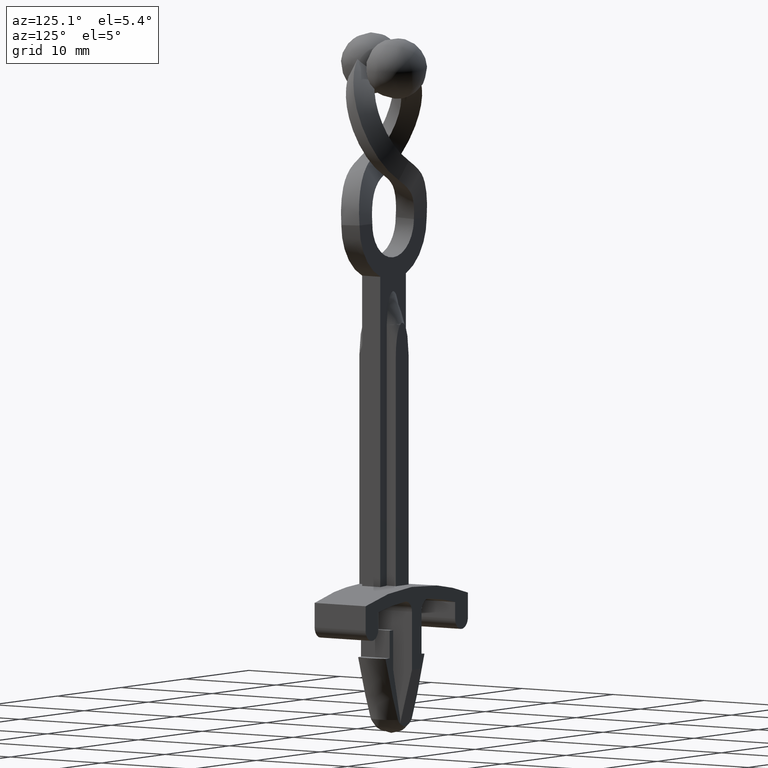
[diagram: clean part render]
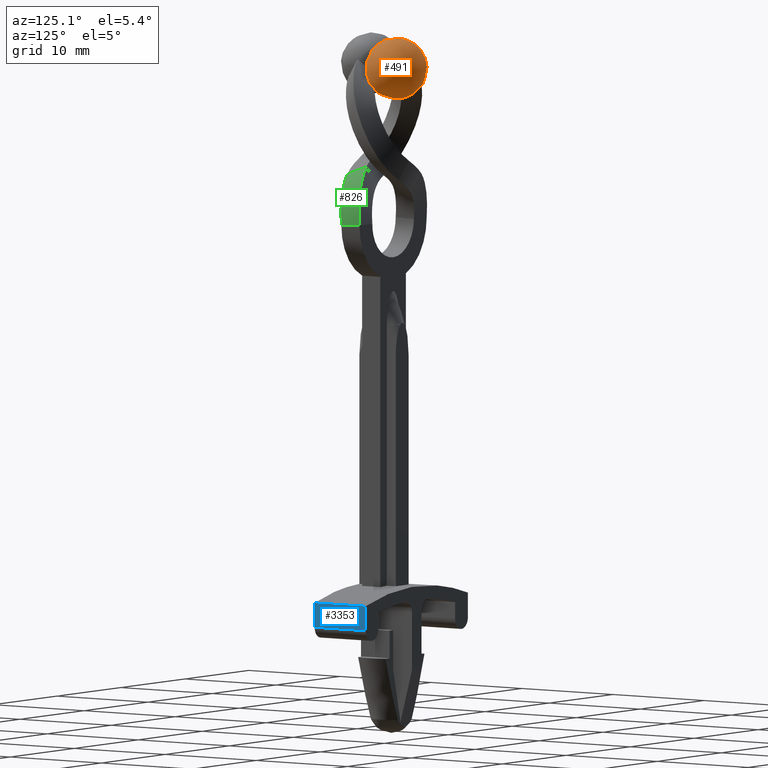
[diagram: same view with three faces highlighted in distinct colors, each labeled with its STEP entity id]
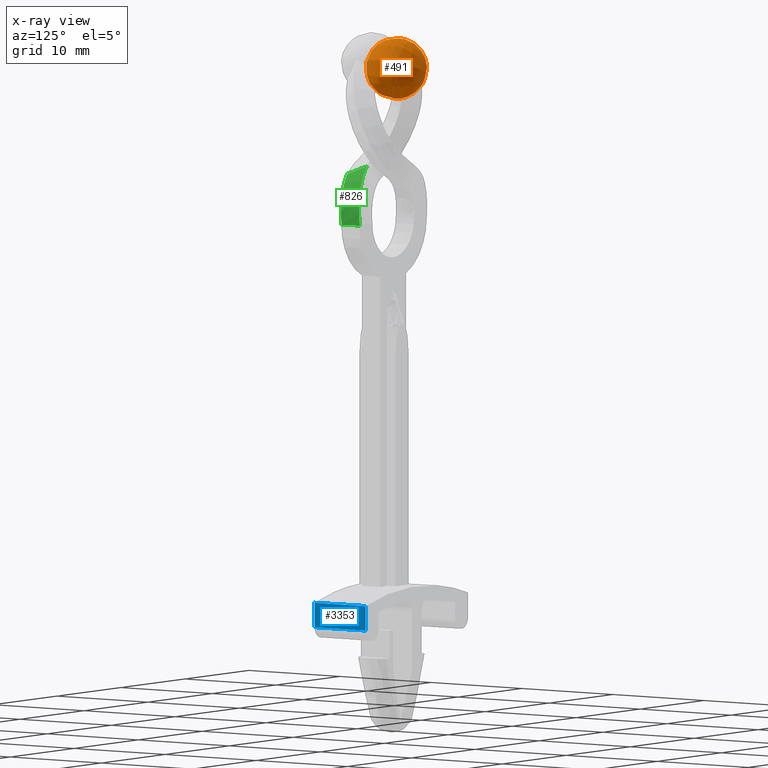
[diagram: x-ray of the same camera — body ghosted, the three highlighted faces saturated]
A machine part, auxiliary view with three faces highlighted in distinct colors.
The next image is the same camera in x-ray (body ghosted, the three faces saturated) — at least one of them is partly hidden behind the body in this view.
Their STEP definitions:

[orange] entity #491 — the highlighted face is a freeform B-spline surface patch.
#369=CARTESIAN_POINT('',(-0.525203079926741,1.343696333352576,12.647938655247941));
#370=CARTESIAN_POINT('',(-0.442358042478779,1.354385251187082,12.509876927833954));
#371=CARTESIAN_POINT('',(-0.318053823121531,1.612739717631442,12.191763779673504));
#372=CARTESIAN_POINT('',(-0.437633498739492,2.130976700360019,12.146672392496209));
#373=CARTESIAN_POINT('',(-0.672424090726442,2.356407136352908,12.420853360043674));
#374=CARTESIAN_POINT('',(-0.755748168907722,2.353985374639821,12.555899483097784));
#375=CARTESIAN_POINT('',(-0.462103023219552,1.195724413060701,12.674346168259346));
#376=CARTESIAN_POINT('',(-0.314997623849283,1.146371215039256,12.486781817545578));
#377=CARTESIAN_POINT('',(0.033949721224506,1.431755355773936,11.875567230398950));
#378=CARTESIAN_POINT('',(-0.187729440916606,2.392473299923918,11.791975927131169));
#379=CARTESIAN_POINT('',(-0.646701270686410,2.592624970327198,12.358103512598202));
#380=CARTESIAN_POINT('',(-0.763663449539884,2.518757572067718,12.553970553505305));
#381=CARTESIAN_POINT('',(-0.412818816506893,0.876901281014548,12.961094304551525));
#382=CARTESIAN_POINT('',(-0.086165850456160,0.511073610822624,12.840930875612802));
#383=CARTESIAN_POINT('',(8.379274447284347,-4.095686250981126,8.597090758833359));
#384=CARTESIAN_POINT('',(5.039375876326441,10.378838362737870,7.337673898755001));
#385=CARTESIAN_POINT('',(-0.729243666115336,3.318120491570052,12.593787341360727));
#386=CARTESIAN_POINT('',(-0.869119826467684,2.876959796444440,12.783808725351964));
#387=CARTESIAN_POINT('',(-0.602366263971613,0.876901281014548,13.463762856151465));
#388=CARTESIAN_POINT('',(-0.436384586173212,0.511073610822624,13.769690122865763));
#389=CARTESIAN_POINT('',(3.119215988349295,-4.095686250981126,22.546452790606679));
#390=CARTESIAN_POINT('',(-0.220682582608611,10.378838362737870,21.287035930528319));
#391=CARTESIAN_POINT('',(-1.082532850158408,3.318120491570052,13.530689234866367));
#392=CARTESIAN_POINT('',(-1.062115590003478,2.876959796444440,13.295622005979334));
#393=CARTESIAN_POINT('',(-0.826690810498487,1.192875385258646,13.644941622704481));
#394=CARTESIAN_POINT('',(-0.839252525160848,1.141944949409370,13.883770110799508));
#395=CARTESIAN_POINT('',(-0.979887989858084,1.426775124684639,14.581190930759641));
#396=CARTESIAN_POINT('',(-1.204376671185083,2.399669023805957,14.496540207345944));
#397=CARTESIAN_POINT('',(-1.175509311773393,2.597658472460116,13.760587434415378));
#398=CARTESIAN_POINT('',(-1.134028528061643,2.521939198358653,13.535714139421316));
#399=CARTESIAN_POINT('',(-0.890721939812416,1.337303843490233,13.625642844788016));
#400=CARTESIAN_POINT('',(-0.919296357256698,1.346204880230067,13.787063181605509));
#401=CARTESIAN_POINT('',(-1.037419697158879,1.607153589509379,14.118532265818452));
#402=CARTESIAN_POINT('',(-1.160150699261966,2.139047859070392,14.072252568989637));
#403=CARTESIAN_POINT('',(-1.154891343508131,2.365684330659934,13.700542458132752));
#404=CARTESIAN_POINT('',(-1.127748896558200,2.361084473736505,13.541435793415419));
#412=(BOUNDED_SURFACE()B_SPLINE_SURFACE(2,2,((#369,#375,#381,#387,#393,#399),(#370,#376,#382,#388,#394,#400),(#371,#377,#383,#389,#395,#401),(#372,#378,#384,#390,#396,#402),(#373,#379,#385,#391,#397,#403),(#374,#380,#386,#392,#398,#404)),.UNSPECIFIED.,.F.,.F.,.U.)B_SPLINE_SURFACE_WITH_KNOTS((3,1,1,1,3),(3,1,1,1,3),(0.0,2.896780624830471,6.086643513679817,9.276506402529165,12.116614500995690),(0.0,2.917190633959819,6.107053522809168,9.296916411658517,12.132242494071059),.UNSPECIFIED.)GEOMETRIC_REPRESENTATION_ITEM()RATIONAL_B_SPLINE_SURFACE(((54.680935872322280,41.816978460238900,27.750616161233769,27.750616161233769,41.628420027402392,53.963777577064057),(41.949671683122190,29.085714271038810,15.019351972033681,15.019351972033681,28.897155838202298,41.232513387863982),(27.930319711088501,15.066362299005130,1.0,1.0,14.877803866168611,27.213161415830289),(27.930319711088501,15.066362299005130,1.0,1.0,14.877803866168611,27.213161415830289),(41.819137983809107,28.955180571725741,14.888818272720609,14.888818272720609,28.766622138889218,41.101979688550898),(54.185106876193892,41.321149464110512,27.254787165105380,27.254787165105380,41.132591031274004,53.467948580935669)))REPRESENTATION_ITEM('')SURFACE());
#413=CARTESIAN_POINT('',(-1.086899371842424,2.141053710324115,14.572527605981840));
#414=VERTEX_POINT('',#413);
#415=CARTESIAN_POINT('',(-0.824357974892849,3.292493974763335,12.940894711433980));
#416=VERTEX_POINT('',#415);
#417=CARTESIAN_POINT('',(-1.086899371842424,2.141053710324115,14.572527605981840));
#418=CARTESIAN_POINT('',(-1.128868890140672,2.206630633446335,14.416138136690011));
#419=CARTESIAN_POINT('',(-1.154386963714786,2.280023216234333,14.262000190461229));
#420=CARTESIAN_POINT('',(-1.168968401908317,2.403239667463355,14.035002040794820));
#421=CARTESIAN_POINT('',(-1.169846898277576,2.446511518596353,13.960039983841620));
#422=CARTESIAN_POINT('',(-1.165000366902754,2.515020022954722,13.848787659570389));
#423=CARTESIAN_POINT('',(-1.162348217340399,2.538443704237354,13.811934022496610));
#424=CARTESIAN_POINT('',(-1.155054424934876,2.585929233409436,13.739562684348069));
#425=CARTESIAN_POINT('',(-1.150409354202682,2.610062018991277,13.703927870847210));
#426=CARTESIAN_POINT('',(-1.122282633749848,2.732686812351268,13.528493753921159));
#427=CARTESIAN_POINT('',(-1.084277678843706,2.837049239171132,13.396859358499229));
#428=CARTESIAN_POINT('',(-1.017001344101504,2.975647800990577,13.243549325895181));
#429=CARTESIAN_POINT('',(-1.002506444101977,3.003845043823161,13.213382787173661));
#430=CARTESIAN_POINT('',(-0.971727773852038,3.060583246814606,13.154691489078781));
#431=CARTESIAN_POINT('',(-0.955437313452087,3.089147038317711,13.126135935464321));
#432=CARTESIAN_POINT('',(-0.903879479745280,3.175390838799064,13.042795177584351));
#433=CARTESIAN_POINT('',(-0.865934028929947,3.233625181203471,12.990332456913260));
#434=CARTESIAN_POINT('',(-0.824357974892850,3.292493974763335,12.940894711433980));
#435=B_SPLINE_CURVE_WITH_KNOTS('',3,(#417,#418,#419,#420,#421,#422,#423,#424,#425,#426,#427,#428,#429,#430,#431,#432,#433,#434),.UNSPECIFIED.,.F.,.U.,(4,2,2,2,2,2,2,2,4),(0.0,0.250000000000001,0.375000000000002,0.437500000000003,0.500000000000003,0.750000000000001,0.812500000000000,0.874999999999999,1.0),.UNSPECIFIED.);
#436=EDGE_CURVE('',#414,#416,#435,.T.);
#437=ORIENTED_EDGE('',*,*,#436,.F.);
#438=CARTESIAN_POINT('',(-0.336110365323622,0.567834350926394,13.532260087279081));
#439=VERTEX_POINT('',#438);
#440=CARTESIAN_POINT('',(-0.336110365323622,0.567834350926394,13.532260087279081));
#441=CARTESIAN_POINT('',(-0.398589567649774,0.624116345356223,13.557877177786411));
#442=CARTESIAN_POINT('',(-0.457573975062271,0.682287663003054,13.586142322051410));
#443=CARTESIAN_POINT('',(-0.568647410310755,0.802286006812635,13.648037283244451));
#444=CARTESIAN_POINT('',(-0.620811194200533,0.864211448339429,13.681722440710240));
#445=CARTESIAN_POINT('',(-0.766285952249357,1.054930082150758,13.790699846803619));
#446=CARTESIAN_POINT('',(-0.846468765770793,1.185580431583592,13.872109802434970));
#447=CARTESIAN_POINT('',(-0.942514123257248,1.386846216252342,14.006489550113921));
#448=CARTESIAN_POINT('',(-0.970456936710972,1.454828294433420,14.053337536390810));
#449=CARTESIAN_POINT('',(-1.017946200195297,1.592723789822313,14.151131747161950));
#450=CARTESIAN_POINT('',(-1.037158174495114,1.661718760209371,14.201430226524710));
#451=CARTESIAN_POINT('',(-1.081308418543315,1.867788371226458,14.355259262508371));
#452=CARTESIAN_POINT('',(-1.093089277523023,2.004488032194229,14.462084544997641));
#453=CARTESIAN_POINT('',(-1.086899371842424,2.141053710324115,14.572527605981840));
#454=B_SPLINE_CURVE_WITH_KNOTS('',3,(#440,#441,#442,#443,#444,#445,#446,#447,#448,#449,#450,#451,#452,#453),.UNSPECIFIED.,.F.,.U.,(4,2,2,2,2,2,4),(0.0,0.125000000000001,0.250000000000001,0.500000000000001,0.625000000000001,0.750000000000001,1.0),.UNSPECIFIED.);
#455=EDGE_CURVE('',#439,#414,#454,.T.);
#456=ORIENTED_EDGE('',*,*,#455,.F.);
#457=CARTESIAN_POINT('',(-0.032097557430013,1.725973218598905,11.905456973518200));
#458=VERTEX_POINT('',#457);
#459=CARTESIAN_POINT('',(-0.032097557430013,1.725973218598905,11.905456973518200));
#460=CARTESIAN_POINT('',(-0.108406045346608,1.607618371397810,12.007010340122109));
#461=CARTESIAN_POINT('',(-0.172534902811599,1.492767326803297,12.119339154865990));
#462=CARTESIAN_POINT('',(-0.277080948823909,1.271446272414717,12.365392991623001));
#463=CARTESIAN_POINT('',(-0.316266247905243,1.167561397088007,12.496193396279221));
#464=CARTESIAN_POINT('',(-0.355850450026636,1.021174888549574,12.703432727151350));
#465=CARTESIAN_POINT('',(-0.365815845047893,0.973956154780938,12.774361280497770));
#466=CARTESIAN_POINT('',(-0.379003757047613,0.882597430747541,12.919923015632479));
#467=CARTESIAN_POINT('',(-0.382203539392053,0.838302895350297,12.994861486865430));
#468=CARTESIAN_POINT('',(-0.381031560718085,0.712109759725524,13.221375850157610));
#469=CARTESIAN_POINT('',(-0.366197790526676,0.636232101644403,13.375502267793079));
#470=CARTESIAN_POINT('',(-0.336110365323622,0.567834350926394,13.532260087279081));
#471=B_SPLINE_CURVE_WITH_KNOTS('',3,(#459,#460,#461,#462,#463,#464,#465,#466,#467,#468,#469,#470),.UNSPECIFIED.,.F.,.U.,(4,2,2,2,2,4),(0.0,0.249999999999999,0.499999999999998,0.624999999999998,0.749999999999999,1.0),.UNSPECIFIED.);
#472=EDGE_CURVE('',#458,#439,#471,.T.);
#473=ORIENTED_EDGE('',*,*,#472,.F.);
#474=CARTESIAN_POINT('',(-0.824357974892849,3.292493974763335,12.940894711433980));
#475=CARTESIAN_POINT('',(-0.821632494310975,3.155549591331354,12.830054148234630));
#476=CARTESIAN_POINT('',(-0.801461699658065,3.019740992194336,12.723968785239940));
#477=CARTESIAN_POINT('',(-0.729197759465720,2.749107330197067,12.521972224946690));
#478=CARTESIAN_POINT('',(-0.677091867214526,2.614289576675213,12.426055785054061));
#479=CARTESIAN_POINT('',(-0.539831458248977,2.344721399132104,12.246035324406300));
#480=CARTESIAN_POINT('',(-0.456946656584237,2.214479299700575,12.164982277574079));
#481=CARTESIAN_POINT('',(-0.312785266285157,2.025972050544432,12.057161538286190));
#482=CARTESIAN_POINT('',(-0.261376024552780,1.964249965860320,12.023497967218260));
#483=CARTESIAN_POINT('',(-0.151696734641920,1.843085295905824,11.960821772500770));
#484=CARTESIAN_POINT('',(-0.093305312026672,1.783553957328404,11.931780534942691));
#485=CARTESIAN_POINT('',(-0.032097557430013,1.725973218598905,11.905456973518200));
#486=B_SPLINE_CURVE_WITH_KNOTS('',3,(#474,#475,#476,#477,#478,#479,#480,#481,#482,#483,#484,#485),.UNSPECIFIED.,.F.,.U.,(4,2,2,2,2,4),(0.0,0.250000000000000,0.500000000000001,0.750000000000001,0.875000000000000,1.0),.UNSPECIFIED.);
#487=EDGE_CURVE('',#416,#458,#486,.T.);
#488=ORIENTED_EDGE('',*,*,#487,.F.);
#489=EDGE_LOOP('',(#437,#456,#473,#488));
#490=FACE_OUTER_BOUND('',#489,.T.);
#491=ADVANCED_FACE('',(#490),#412,.T.);

[blue] entity #3353 — the highlighted face is a freeform B-spline surface patch.
#3318=CARTESIAN_POINT('',(8.000073000000000,-2.279719969138977,-33.890109964964303));
#3319=CARTESIAN_POINT('',(8.000073000000000,-2.279719969138977,-36.309890880825613));
#3320=CARTESIAN_POINT('',(8.000073000000000,3.879719718799405,-33.890109964964303));
#3321=CARTESIAN_POINT('',(8.000073000000000,3.879719718799405,-36.309890880825613));
#3322=B_SPLINE_SURFACE_WITH_KNOTS('',1,1,((#3318,#3320),(#3319,#3321)),.UNSPECIFIED.,.F.,.F.,.U.,(2,2),(2,2),(0.0,2.419780915861303),(0.0,6.159439687938381),.UNSPECIFIED.);
#3323=CARTESIAN_POINT('',(8.000073000000000,-2.0,-36.200000000000003));
#3324=VERTEX_POINT('',#3323);
#3325=CARTESIAN_POINT('',(8.000073000000000,-2.0,-34.0));
#3326=VERTEX_POINT('',#3325);
#3327=CARTESIAN_POINT('',(8.000073000000000,-2.0,-36.200000000000003));
#3328=CARTESIAN_POINT('',(8.000073000000000,-2.0,-34.0));
#3329=QUASI_UNIFORM_CURVE('',1,(#3327,#3328),.UNSPECIFIED.,.F.,.U.);
#3330=EDGE_CURVE('',#3324,#3326,#3329,.T.);
#3331=ORIENTED_EDGE('',*,*,#3330,.F.);
#3332=CARTESIAN_POINT('',(8.000073000000000,3.599999999999935,-36.200000000000003));
#3333=VERTEX_POINT('',#3332);
#3334=CARTESIAN_POINT('',(8.000073000000000,3.599999999999935,-36.200000000000003));
#3335=CARTESIAN_POINT('',(8.000073000000000,-2.0,-36.200000000000003));
#3336=QUASI_UNIFORM_CURVE('',1,(#3334,#3335),.UNSPECIFIED.,.F.,.U.);
#3337=EDGE_CURVE('',#3333,#3324,#3336,.T.);
#3338=ORIENTED_EDGE('',*,*,#3337,.F.);
#3339=CARTESIAN_POINT('',(8.000073000000000,3.599999999999935,-34.0));
#3340=VERTEX_POINT('',#3339);
#3341=CARTESIAN_POINT('',(8.000073000000000,3.599999999999935,-36.200000000000003));
#3342=CARTESIAN_POINT('',(8.000073000000000,3.599999999999935,-34.0));
#3343=QUASI_UNIFORM_CURVE('',1,(#3341,#3342),.UNSPECIFIED.,.F.,.U.);
#3344=EDGE_CURVE('',#3333,#3340,#3343,.T.);
#3345=ORIENTED_EDGE('',*,*,#3344,.T.);
#3346=CARTESIAN_POINT('',(8.000073000000000,3.599999999999935,-34.0));
#3347=CARTESIAN_POINT('',(8.000073000000000,-2.0,-34.0));
#3348=QUASI_UNIFORM_CURVE('',1,(#3346,#3347),.UNSPECIFIED.,.F.,.U.);
#3349=EDGE_CURVE('',#3340,#3326,#3348,.T.);
#3350=ORIENTED_EDGE('',*,*,#3349,.T.);
#3351=EDGE_LOOP('',(#3331,#3338,#3345,#3350));
#3352=FACE_OUTER_BOUND('',#3351,.T.);
#3353=ADVANCED_FACE('',(#3352),#3322,.T.);

[green] entity #826 — the highlighted face is a freeform B-spline surface patch.
#662=CARTESIAN_POINT('',(2.149967534031185,-0.403884660268962,5.029066196815569));
#663=VERTEX_POINT('',#662);
#674=CARTESIAN_POINT('',(5.250000988660920,1.000071693797540,0.026189324703322));
#675=VERTEX_POINT('',#674);
#676=CARTESIAN_POINT('',(5.250000988660920,1.000071693797540,0.026189324703322));
#677=CARTESIAN_POINT('',(5.249824866936224,0.998103426073690,0.048157506786921));
#678=CARTESIAN_POINT('',(5.249639643696368,0.996039333149134,0.071193320758400));
#679=CARTESIAN_POINT('',(5.248474154146174,0.983114021439017,0.215422988953304));
#680=CARTESIAN_POINT('',(5.242746046332049,0.968514329377998,0.362515386851879));
#681=CARTESIAN_POINT('',(5.222623541213755,0.939353166395984,0.625181957585172));
#682=CARTESIAN_POINT('',(5.208116835555253,0.923462509131917,0.755615182447528));
#683=CARTESIAN_POINT('',(5.151548368179588,0.872005131815771,1.143584689042877));
#684=CARTESIAN_POINT('',(5.096433198636581,0.832650410229003,1.397802473242931));
#685=CARTESIAN_POINT('',(4.881163260365895,0.700628438148188,2.141679575574468));
#686=CARTESIAN_POINT('',(4.670841717992901,0.593928915406902,2.612548552251683));
#687=CARTESIAN_POINT('',(4.132508203498084,0.350888966805131,3.472559797386008));
#688=CARTESIAN_POINT('',(3.804640012247436,0.214613453298515,3.861472369636403));
#689=CARTESIAN_POINT('',(3.240773629670294,-0.005119102759858,4.362299487607548));
#690=CARTESIAN_POINT('',(3.040834326520470,-0.080913121247464,4.515542336512299));
#691=CARTESIAN_POINT('',(2.724894188477230,-0.197631177704365,4.722671557645476));
#692=CARTESIAN_POINT('',(2.616906898454194,-0.237042547181866,4.787927828070163));
#693=CARTESIAN_POINT('',(2.395875208514901,-0.316754604227500,4.910515591270482));
#694=CARTESIAN_POINT('',(2.269924497509940,-0.361603585704386,4.973785843812964));
#695=CARTESIAN_POINT('',(2.161404927675056,-0.399853353760691,5.023795638876504));
#696=CARTESIAN_POINT('',(2.155608552687154,-0.401896388954094,5.026466747003496));
#697=CARTESIAN_POINT('',(2.149967534031185,-0.403884660268962,5.029066196815569));
#698=B_SPLINE_CURVE_WITH_KNOTS('',3,(#676,#677,#678,#679,#680,#681,#682,#683,#684,#685,#686,#687,#688,#689,#690,#691,#692,#693,#694,#695,#696,#697),.UNSPECIFIED.,.F.,.U.,(4,2,2,2,2,2,2,2,2,2,4),(-0.013843101330432,0.0,0.062500000000000,0.125000000000000,0.250000000000000,0.500000000000000,0.750000000000000,0.875000000000000,0.937500000000000,1.0,1.003647700500690),.UNSPECIFIED.);
#699=EDGE_CURVE('',#675,#663,#698,.T.);
#717=CARTESIAN_POINT('',(5.251088822374879,-0.997921171654867,-0.176924137044495));
#718=CARTESIAN_POINT('',(5.250848755923880,-0.327233895192352,-0.116873559704173));
#719=CARTESIAN_POINT('',(5.250608689472911,0.343453381270163,-0.056822982363851));
#720=CARTESIAN_POINT('',(5.250368623021911,1.014140657732683,0.003227594976472));
#721=CARTESIAN_POINT('',(5.250845013889910,-1.000648816862162,-0.146573092863280));
#722=CARTESIAN_POINT('',(5.250607202610700,-0.329936489229668,-0.086801207603864));
#723=CARTESIAN_POINT('',(5.250369391331529,0.340775838402824,-0.027029322344448));
#724=CARTESIAN_POINT('',(5.250131580052321,1.011488166035321,0.032742562914969));
#725=CARTESIAN_POINT('',(5.250599184242643,-1.003394384682473,-0.116024119751890));
#726=CARTESIAN_POINT('',(5.250363124887559,-0.332662442342611,-0.056470495923053));
#727=CARTESIAN_POINT('',(5.250127065532515,0.338069499997247,0.003083127905784));
#728=CARTESIAN_POINT('',(5.249891006177432,1.008801442337109,0.062636751734620));
#729=CARTESIAN_POINT('',(5.249427402275315,-1.016393727100186,0.028586895890948));
#730=CARTESIAN_POINT('',(5.249166125511263,-0.345939828876752,0.091233066752121));
#731=CARTESIAN_POINT('',(5.248904848747129,0.324514069346686,0.153879237613296));
#732=CARTESIAN_POINT('',(5.248643571983081,0.994967967570122,0.216525408474470));
#733=CARTESIAN_POINT('',(5.244186698900954,-1.029041300046935,0.154615139398147));
#734=CARTESIAN_POINT('',(5.243699404912130,-0.359278171923624,0.224359976845092));
#735=CARTESIAN_POINT('',(5.243212110923336,0.310484956199686,0.294104814292020));
#736=CARTESIAN_POINT('',(5.242724816934517,0.980248084323003,0.363849651738960));
#737=CARTESIAN_POINT('',(5.173198722038751,-1.133161564727147,1.092524397671027));
#738=CARTESIAN_POINT('',(5.169874613434975,-0.467559268055037,1.199749731328379));
#739=CARTESIAN_POINT('',(5.166550504831093,0.198043028617066,1.306975064985767));
#740=CARTESIAN_POINT('',(5.163226396227307,0.863645325289155,1.414200398643126));
#741=CARTESIAN_POINT('',(4.653962128649773,-1.432451033529454,2.660971282912962));
#742=CARTESIAN_POINT('',(4.629888499871165,-0.778808838068464,2.830874454764638));
#743=CARTESIAN_POINT('',(4.605814871092584,-0.125166642607480,3.000777626616307));
#744=CARTESIAN_POINT('',(4.581741242313988,0.528475552853507,3.170680798467958));
#745=CARTESIAN_POINT('',(3.490363277676098,-1.893913338913504,3.780674566247014));
#746=CARTESIAN_POINT('',(3.419789834436624,-1.258712114350089,3.995323207728500));
#747=CARTESIAN_POINT('',(3.349216391197159,-0.623510889786706,4.209971849209905));
#748=CARTESIAN_POINT('',(3.278642947957707,0.011690334776694,4.424620490691238));
#749=CARTESIAN_POINT('',(2.685449196598717,-2.184359295205143,4.225912942869425));
#750=CARTESIAN_POINT('',(2.582713430305319,-1.560763581479626,4.458352498227658));
#751=CARTESIAN_POINT('',(2.479977664011912,-0.937167867754101,4.690792053585950));
#752=CARTESIAN_POINT('',(2.377241897718490,-0.313572154028580,4.923231608944289));
#753=CARTESIAN_POINT('',(2.559081630946574,-2.229355191739081,4.288914160784831));
#754=CARTESIAN_POINT('',(2.448871340352530,-1.608412927901457,4.524988424850938));
#755=CARTESIAN_POINT('',(2.338661049758513,-0.987470664063814,4.761062688916923));
#756=CARTESIAN_POINT('',(2.228450759164474,-0.366528400226177,4.997136952982951));
#757=CARTESIAN_POINT('',(2.453366252704420,-2.266532805784432,4.336300568902074));
#758=CARTESIAN_POINT('',(2.342660568929653,-1.645760698381479,4.572550396410654));
#759=CARTESIAN_POINT('',(2.231954885154888,-1.024988590978535,4.808800223919254));
#760=CARTESIAN_POINT('',(2.121249201380126,-0.404216483575589,5.045050051427851));
#761=B_SPLINE_SURFACE_WITH_KNOTS('',3,3,((#717,#721,#725,#729,#733,#737,#741,#745,#749,#753,#757),(#718,#722,#726,#730,#734,#738,#742,#746,#750,#754,#758),(#719,#723,#727,#731,#735,#739,#743,#747,#751,#755,#759),(#720,#724,#728,#732,#736,#740,#744,#748,#752,#756,#760)),.UNSPECIFIED.,.F.,.F.,.U.,(4,4),(4,2,2,1,2,4),(0.0,2.020113827038882),(0.0,0.125283000298711,0.538904431652460,3.434254451128706,6.329604470604951,6.807619340106459),.UNSPECIFIED.);
#762=CARTESIAN_POINT('',(2.668587632064706,-2.180297055952590,4.235297986780220));
#763=VERTEX_POINT('',#762);
#764=CARTESIAN_POINT('',(2.538543379547505,-2.225985921319440,4.299787493913559));
#765=VERTEX_POINT('',#764);
#766=CARTESIAN_POINT('',(2.668587632064706,-2.180297055952590,4.235297986780220));
#767=CARTESIAN_POINT('',(2.624772359756690,-2.195761650799687,4.257853341782346));
#768=CARTESIAN_POINT('',(2.580896193753228,-2.211175489694294,4.279596359442374));
#769=CARTESIAN_POINT('',(2.538543379547505,-2.225985921319440,4.299787493913559));
#770=B_SPLINE_CURVE_WITH_KNOTS('',3,(#766,#767,#768,#769),.UNSPECIFIED.,.F.,.U.,(4,4),(0.964088314948584,0.990717838097186),.UNSPECIFIED.);
#771=EDGE_CURVE('',#763,#765,#770,.T.);
#772=ORIENTED_EDGE('',*,*,#771,.F.);
#773=CARTESIAN_POINT('',(2.742700358675431,-2.153767546305847,4.196461574012152));
#774=VERTEX_POINT('',#773);
#775=CARTESIAN_POINT('',(2.668587632064706,-2.180297055952590,4.235297986780220));
#776=CARTESIAN_POINT('',(2.694054922449247,-2.171199982206636,4.222238159207102));
#777=CARTESIAN_POINT('',(2.717461385792757,-2.162838145309342,4.209975167466701));
#778=CARTESIAN_POINT('',(2.742700358675431,-2.153767546305847,4.196461574012152));
#779=B_SPLINE_CURVE_WITH_KNOTS('',3,(#775,#776,#777,#778),.UNSPECIFIED.,.F.,.U.,(4,4),(0.0,0.090094886306522),.UNSPECIFIED.);
#780=EDGE_CURVE('',#763,#774,#779,.T.);
#781=ORIENTED_EDGE('',*,*,#780,.T.);
#782=CARTESIAN_POINT('',(5.249820342743500,-1.000006138446738,-0.040918356316616));
#783=VERTEX_POINT('',#782);
#784=CARTESIAN_POINT('',(5.249820342743500,-1.000006138446738,-0.040918356316616));
#785=CARTESIAN_POINT('',(5.219883944869782,-1.166885552013096,1.760542492841594));
#786=CARTESIAN_POINT('',(4.263361798499229,-1.607259167980069,3.382260434555526));
#787=CARTESIAN_POINT('',(2.742700358675431,-2.153767546305847,4.196461574012152));
#788=B_SPLINE_CURVE_WITH_KNOTS('',3,(#784,#785,#786,#787),.UNSPECIFIED.,.F.,.U.,(4,4),(0.0,5.428264461018598),.UNSPECIFIED.);
#789=EDGE_CURVE('',#783,#774,#788,.T.);
#790=ORIENTED_EDGE('',*,*,#789,.F.);
#791=CARTESIAN_POINT('',(5.250000988660920,1.000071693797540,0.026189324703322));
#792=CARTESIAN_POINT('',(5.250001900036029,0.666886154486899,0.014931440382195));
#793=CARTESIAN_POINT('',(5.250002496335360,0.333700385615191,0.003678672299185));
#794=CARTESIAN_POINT('',(5.250002751350345,0.000514324187812,-0.007567567814945));
#795=CARTESIAN_POINT('',(5.250002878978195,-0.166235958768616,-0.013195995706536));
#796=CARTESIAN_POINT('',(5.249995458190055,-0.332989064835711,-0.018761488868975));
#797=CARTESIAN_POINT('',(5.249965034589982,-0.499743359030171,-0.024299814890510));
#798=CARTESIAN_POINT('',(5.249934610985814,-0.666497675666351,-0.029838141657391));
#799=CARTESIAN_POINT('',(5.249886184451131,-0.833252384186351,-0.035367573456957));
#800=CARTESIAN_POINT('',(5.249820342743500,-1.000006138446738,-0.040918356316616));
#801=B_SPLINE_CURVE_WITH_KNOTS('',3,(#791,#792,#793,#794,#795,#796,#797,#798,#799,#800),.UNSPECIFIED.,.F.,.U.,(4,3,3,4),(0.000000943913372,0.001000994975556,0.001501492520808,0.002001990119649),.UNSPECIFIED.);
#802=EDGE_CURVE('',#675,#783,#801,.T.);
#803=ORIENTED_EDGE('',*,*,#802,.F.);
#804=ORIENTED_EDGE('',*,*,#699,.T.);
#805=CARTESIAN_POINT('',(2.538543379547505,-2.225985921319440,4.299787493913559));
#806=CARTESIAN_POINT('',(2.534034481302756,-2.206949202201308,4.307672900570077));
#807=CARTESIAN_POINT('',(2.524819474019042,-2.168042716452536,4.323788721066827));
#808=CARTESIAN_POINT('',(2.510962413212038,-2.108341980878930,4.348350255216896));
#809=CARTESIAN_POINT('',(2.496700412233238,-2.046106685069487,4.373845928808994));
#810=CARTESIAN_POINT('',(2.482054001163447,-1.981350632471715,4.400259797478552));
#811=CARTESIAN_POINT('',(2.467011056213463,-1.914078984620756,4.427597624681446));
#812=CARTESIAN_POINT('',(2.451567154557619,-1.844293486552862,4.455861547339572));
#813=CARTESIAN_POINT('',(2.424946525799562,-1.722893757537003,4.504884213031991));
#814=CARTESIAN_POINT('',(2.387035454917577,-1.547041880072129,4.575510264814570));
#815=CARTESIAN_POINT('',(2.339972861196365,-1.324566673041533,4.664327978296361));
#816=CARTESIAN_POINT('',(2.292134684141793,-1.094599104971544,4.755656953550321));
#817=CARTESIAN_POINT('',(2.247184426117599,-0.876513197029121,4.842020086801878));
#818=CARTESIAN_POINT('',(2.199097055545674,-0.642611669745818,4.934573597356454));
#819=CARTESIAN_POINT('',(2.167758222151751,-0.490332027160281,4.994848717897465));
#820=CARTESIAN_POINT('',(2.149967534031185,-0.403884660268962,5.029066196815569));
#821=B_SPLINE_CURVE_WITH_KNOTS('',3,(#805,#806,#807,#808,#809,#810,#811,#812,#813,#814,#815,#816,#817,#818,#819,#820),.UNSPECIFIED.,.F.,.U.,(4,1,1,1,1,1,1,1,1,1,1,1,1,4),(0.000034578152804,0.031663772752720,0.064676997087854,0.099040075416466,0.134753356092766,0.171817140579654,0.210231689519975,0.249997227927352,0.372140911286239,0.499997413967276,0.616027386612660,0.749998309872386,0.858076972975740,1.0),.UNSPECIFIED.);
#822=EDGE_CURVE('',#765,#663,#821,.T.);
#823=ORIENTED_EDGE('',*,*,#822,.F.);
#824=EDGE_LOOP('',(#772,#781,#790,#803,#804,#823));
#825=FACE_OUTER_BOUND('',#824,.T.);
#826=ADVANCED_FACE('',(#825),#761,.T.);